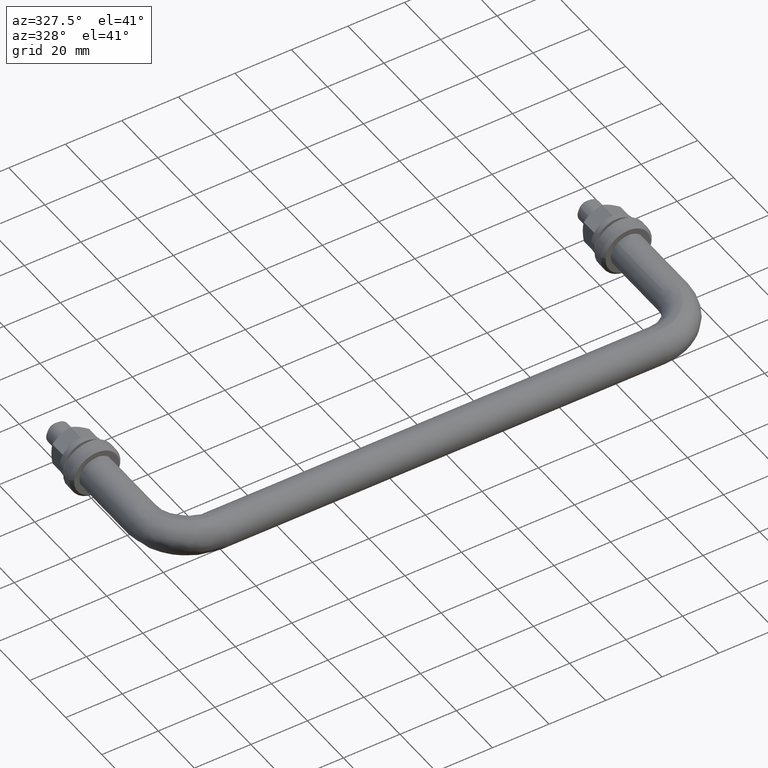
[diagram: clean part render]
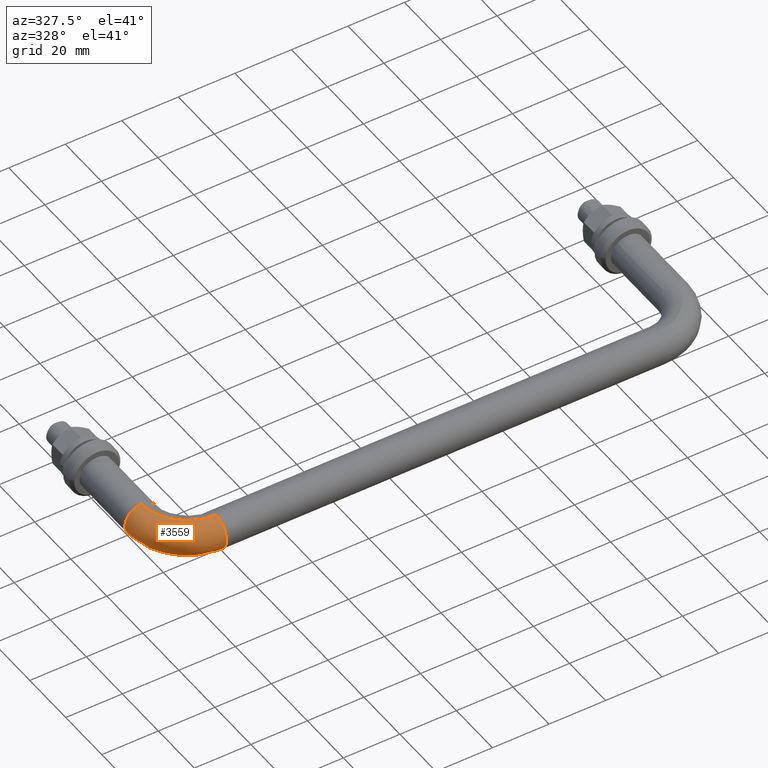
[diagram: same view with one face highlighted and labeled with its STEP entity id]
A machine part, auxiliary view. The second image highlights one B-rep face of the part: STEP entity #3559.
In plain terms, the highlighted face is a freeform B-spline surface patch.
Its self-contained STEP definition (entity closure, byte-faithful):
#2969=CARTESIAN_POINT('',(16.0,-48.467998533679001,-4.004620968707411));
#2970=VERTEX_POINT('',#2969);
#2976=CARTESIAN_POINT('',(15.999999999610340,-43.581600490287009,-5.985394043024395));
#2977=VERTEX_POINT('',#2976);
#2978=CARTESIAN_POINT('',(15.999999999610345,-43.581600490287016,-5.985394043024395));
#2979=CARTESIAN_POINT('',(16.0,-43.790545304490436,-5.999999999999999));
#2980=CARTESIAN_POINT('',(16.0,-44.0,-6.0));
#2981=CARTESIAN_POINT('',(16.0,-46.679560903499613,-6.0));
#2982=CARTESIAN_POINT('',(16.000000000000004,-48.467998533679001,-4.004620968707411));
#2990=(BOUNDED_CURVE()B_SPLINE_CURVE(2,(#2978,#2979,#2980,#2981,#2982),.UNSPECIFIED.,.F.,.U.)B_SPLINE_CURVE_WITH_KNOTS((3,2,3),(0.237833686520174,0.250000000000000,0.383246100224852),.UNSPECIFIED.)CURVE()GEOMETRIC_REPRESENTATION_ITEM()RATIONAL_B_SPLINE_CURVE((0.972879876355423,0.985746277135201,1.0,0.843892483243213,0.854190709075447))REPRESENTATION_ITEM(''));
#2991=EDGE_CURVE('',#2977,#2970,#2990,.T.);
#3125=CARTESIAN_POINT('',(15.999999999535239,-44.075396242597783,5.999526265181453));
#3126=VERTEX_POINT('',#3125);
#3142=CARTESIAN_POINT('',(16.0,-49.999999999999993,0.0));
#3143=VERTEX_POINT('',#3142);
#3144=CARTESIAN_POINT('',(16.0,-49.999999999999993,0.0));
#3145=CARTESIAN_POINT('',(16.000000000000004,-49.999999999999993,5.925071572929852));
#3146=CARTESIAN_POINT('',(15.999999999535245,-44.075396242597783,5.999526265181453));
#3154=(BOUNDED_CURVE()B_SPLINE_CURVE(2,(#3144,#3145,#3146),.UNSPECIFIED.,.F.,.U.)B_SPLINE_CURVE_WITH_KNOTS((3,3),(0.500000000000000,0.747784295728395),.UNSPECIFIED.)CURVE()GEOMETRIC_REPRESENTATION_ITEM()RATIONAL_B_SPLINE_CURVE((1.0,0.709702640210744,0.994854295199034))REPRESENTATION_ITEM(''));
#3155=EDGE_CURVE('',#3143,#3126,#3154,.T.);
#3157=CARTESIAN_POINT('',(16.000000000000004,-48.467998533679001,-4.004620968707411));
#3158=CARTESIAN_POINT('',(16.0,-49.999999999999986,-2.295350513753448));
#3159=CARTESIAN_POINT('',(16.0,-49.999999999999993,0.0));
#3167=(BOUNDED_CURVE()B_SPLINE_CURVE(2,(#3157,#3158,#3159),.UNSPECIFIED.,.F.,.U.)B_SPLINE_CURVE_WITH_KNOTS((3,3),(0.383246100224852,0.500000000000000),.UNSPECIFIED.)CURVE()GEOMETRIC_REPRESENTATION_ITEM()RATIONAL_B_SPLINE_CURVE((0.854190709075447,0.863214297943335,1.0))REPRESENTATION_ITEM(''));
#3168=EDGE_CURVE('',#2970,#3143,#3167,.T.);
#3192=CARTESIAN_POINT('',(-0.075396246629108,-28.000000001397801,5.999526265130792));
#3193=VERTEX_POINT('',#3192);
#3250=CARTESIAN_POINT('',(-3.735087819828852,-28.0,-4.695648941111986));
#3251=VERTEX_POINT('',#3250);
#3257=CARTESIAN_POINT('',(-5.999999999999996,-28.0,0.0));
#3258=VERTEX_POINT('',#3257);
#3259=CARTESIAN_POINT('',(-3.735087819828852,-28.000000000000011,-4.695648941111986));
#3260=CARTESIAN_POINT('',(-5.999999999999996,-28.000000000000004,-2.894056444900477));
#3261=CARTESIAN_POINT('',(-5.999999999999996,-28.0,0.0));
#3269=(BOUNDED_CURVE()B_SPLINE_CURVE(2,(#3259,#3260,#3261),.UNSPECIFIED.,.F.,.U.)B_SPLINE_CURVE_WITH_KNOTS((3,3),(0.357863877391648,0.500000000000000),.UNSPECIFIED.)CURVE()GEOMETRIC_REPRESENTATION_ITEM()RATIONAL_B_SPLINE_CURVE((0.856305618644005,0.833477174158305,1.0))REPRESENTATION_ITEM(''));
#3270=EDGE_CURVE('',#3251,#3258,#3269,.T.);
#3272=CARTESIAN_POINT('',(-5.999999999999996,-28.0,0.0));
#3273=CARTESIAN_POINT('',(-5.999999999999996,-27.999999999999996,5.925071564966636));
#3274=CARTESIAN_POINT('',(-0.075396246629108,-28.000000001397805,5.999526265130792));
#3282=(BOUNDED_CURVE()B_SPLINE_CURVE(2,(#3272,#3273,#3274),.UNSPECIFIED.,.F.,.U.)B_SPLINE_CURVE_WITH_KNOTS((3,3),(0.500000000000000,0.747784295492051),.UNSPECIFIED.)CURVE()GEOMETRIC_REPRESENTATION_ITEM()RATIONAL_B_SPLINE_CURVE((1.0,0.709702640487639,0.994854294655061))REPRESENTATION_ITEM(''));
#3283=EDGE_CURVE('',#3258,#3193,#3282,.T.);
#3321=CARTESIAN_POINT('',(0.418399509453649,-28.000000000001169,-5.985394043042524));
#3322=VERTEX_POINT('',#3321);
#3336=CARTESIAN_POINT('',(0.418399509453649,-28.000000000001172,-5.985394043042525));
#3337=CARTESIAN_POINT('',(0.209454695249271,-27.999999999999996,-6.0));
#3338=CARTESIAN_POINT('',(3.428898E-015,-28.0,-6.0));
#3339=CARTESIAN_POINT('',(-2.095293800533736,-28.000000000000004,-5.999999999999999));
#3340=CARTESIAN_POINT('',(-3.735087819828852,-28.0,-4.695648941111987));
#3348=(BOUNDED_CURVE()B_SPLINE_CURVE(2,(#3336,#3337,#3338,#3339,#3340),.UNSPECIFIED.,.F.,.U.)B_SPLINE_CURVE_WITH_KNOTS((3,2,3),(0.237833686535077,0.250000000000000,0.357863877391648),.UNSPECIFIED.)CURVE()GEOMETRIC_REPRESENTATION_ITEM()RATIONAL_B_SPLINE_CURVE((0.972879876386946,0.985746277152662,1.0,0.873629607028243,0.856305618644005))REPRESENTATION_ITEM(''));
#3349=EDGE_CURVE('',#3322,#3251,#3348,.T.);
#3490=CARTESIAN_POINT('',(0.546684718929752,-26.922813480309134,-5.979047684327480));
#3491=CARTESIAN_POINT('',(-0.691926488078403,-44.691926946430740,-5.979047684327480));
#3492=CARTESIAN_POINT('',(17.077186944031549,-43.453315251491205,-5.979047684327481));
#3493=CARTESIAN_POINT('',(0.501270135645602,-26.919647818053406,-5.982230019739768));
#3494=CARTESIAN_POINT('',(-0.740981132462339,-44.740981592161710,-5.982230019739768));
#3495=CARTESIAN_POINT('',(17.080352607534337,-43.498729834688440,-5.982230019739771));
#3496=CARTESIAN_POINT('',(0.285231963537030,-26.904588693037091,-5.997368459328781));
#3497=CARTESIAN_POINT('',(-0.974335155328387,-44.974335621435536,-5.997368459328783));
#3498=CARTESIAN_POINT('',(17.095411738482944,-43.714768006383508,-5.997368459328781));
#3499=CARTESIAN_POINT('',(0.113943897119562,-26.892648912299236,-5.999526265222896));
#3500=CARTESIAN_POINT('',(-1.159352270486051,-45.159352741673686,-5.999526265222896));
#3501=CARTESIAN_POINT('',(17.107351523924276,-43.886056072473103,-5.999526265222895));
#3502=CARTESIAN_POINT('',(-5.871059703111108,-26.475459132552292,-6.074922504523007));
#3503=CARTESIAN_POINT('',(-7.624064748611073,-51.624065397316620,-6.074922504523005));
#3504=CARTESIAN_POINT('',(17.524541468016576,-49.871059661247941,-6.074922504523006));
#3505=CARTESIAN_POINT('',(-5.946273435613747,-26.470216295188671,-0.075396239300112));
#3506=CARTESIAN_POINT('',(-7.705306997992081,-51.705307648928503,-0.075396239300112));
#3507=CARTESIAN_POINT('',(17.529784307445532,-49.946273393606596,-0.075396239300112));
#3508=CARTESIAN_POINT('',(-6.021487168116381,-26.464973457825039,5.924130025922782));
#3509=CARTESIAN_POINT('',(-7.786549247373084,-51.786549900540393,5.924130025922781));
#3510=CARTESIAN_POINT('',(17.535027146874498,-50.021487125965294,5.924130025922783));
#3511=CARTESIAN_POINT('',(0.007550900727656,-26.885232697757676,6.000080990592300));
#3512=CARTESIAN_POINT('',(-1.274272858225273,-45.274273332568562,6.000080990592299));
#3513=CARTESIAN_POINT('',(17.114767741387347,-43.992449068661351,6.000080990592299));
#3514=CARTESIAN_POINT('',(0.051317789194604,-26.888283506041070,6.000632345113817));
#3515=CARTESIAN_POINT('',(-1.226997974382249,-45.226998447427405,6.000632345113816));
#3516=CARTESIAN_POINT('',(17.111716931902134,-43.948682180278183,6.000632345113814));
#3524=(BOUNDED_SURFACE()B_SPLINE_SURFACE(2,2,((#3490,#3493,#3496,#3499,#3502,#3505,#3508,#3511,#3514),(#3491,#3494,#3497,#3500,#3503,#3506,#3509,#3512,#3515),(#3492,#3495,#3498,#3501,#3504,#3507,#3510,#3513,#3516)),.UNSPECIFIED.,.F.,.F.,.U.)B_SPLINE_SURFACE_WITH_KNOTS((3,3),(3,1,2,2,1,3),(0.0,40.091364059811198),(0.0,0.103626820860209,0.501271461514538,10.442396958468819,20.383522455423101,20.487276362182129),.UNSPECIFIED.)GEOMETRIC_REPRESENTATION_ITEM()RATIONAL_B_SPLINE_SURFACE(((0.896240593619912,0.898830846501001,0.911360612797192,0.922164430830710,0.652068722409428,0.922164430830710,0.652068722409428,0.924983375723432,0.927802320616155),(0.588135445891818,0.589835234479879,0.598057579841146,0.605147314876259,0.427903769965834,0.605147314876259,0.427903769965834,0.606997176870045,0.608847038863832),(0.896240604832222,0.898830857745716,0.911360624198660,0.922164442367337,0.652068730567055,0.922164442367337,0.652068730567055,0.924983387295326,0.927802332223315)))REPRESENTATION_ITEM('')SURFACE());
#3525=ORIENTED_EDGE('',*,*,#2991,.T.);
#3526=ORIENTED_EDGE('',*,*,#3168,.T.);
#3527=ORIENTED_EDGE('',*,*,#3155,.T.);
#3528=CARTESIAN_POINT('',(-0.075396246629108,-28.000000001397801,5.999526265130792));
#3529=CARTESIAN_POINT('',(-0.075396236504506,-44.075396238370594,5.999526265222894));
#3530=CARTESIAN_POINT('',(15.999999999535250,-44.075396242597783,5.999526265181453));
#3538=(BOUNDED_CURVE()B_SPLINE_CURVE(2,(#3528,#3529,#3530),.UNSPECIFIED.,.F.,.U.)B_SPLINE_CURVE_WITH_KNOTS((3,3),(-1.744561813132473,-0.255438186745294),.UNSPECIFIED.)CURVE()GEOMETRIC_REPRESENTATION_ITEM()RATIONAL_B_SPLINE_CURVE((0.894678509977967,0.632633241475806,0.894678510020986))REPRESENTATION_ITEM(''));
#3539=EDGE_CURVE('',#3193,#3126,#3538,.T.);
#3540=ORIENTED_EDGE('',*,*,#3539,.F.);
#3541=ORIENTED_EDGE('',*,*,#3283,.F.);
#3542=ORIENTED_EDGE('',*,*,#3270,.F.);
#3543=ORIENTED_EDGE('',*,*,#3349,.F.);
#3544=CARTESIAN_POINT('',(0.418399509453649,-28.000000000001169,-5.985394043042524));
#3545=CARTESIAN_POINT('',(0.418399509454987,-43.581600489768043,-5.985394043042594));
#3546=CARTESIAN_POINT('',(15.999999999610342,-43.581600490287009,-5.985394043024395));
#3554=(BOUNDED_CURVE()B_SPLINE_CURVE(2,(#3544,#3545,#3546),.UNSPECIFIED.,.F.,.U.)B_SPLINE_CURVE_WITH_KNOTS((3,3),(-1.744561813315432,-0.255438186737073),.UNSPECIFIED.)CURVE()GEOMETRIC_REPRESENTATION_ITEM()RATIONAL_B_SPLINE_CURVE((0.874553433413147,0.618402663285538,0.874553433395084))REPRESENTATION_ITEM(''));
#3555=EDGE_CURVE('',#3322,#2977,#3554,.T.);
#3556=ORIENTED_EDGE('',*,*,#3555,.T.);
#3557=EDGE_LOOP('',(#3525,#3526,#3527,#3540,#3541,#3542,#3543,#3556));
#3558=FACE_OUTER_BOUND('',#3557,.T.);
#3559=ADVANCED_FACE('',(#3558),#3524,.T.);